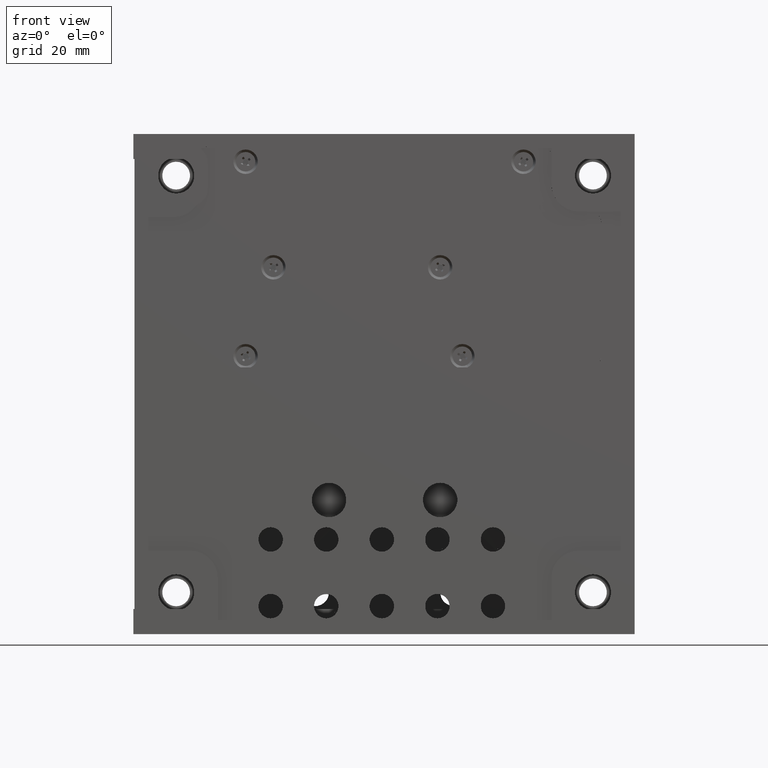
[diagram: clean part render]
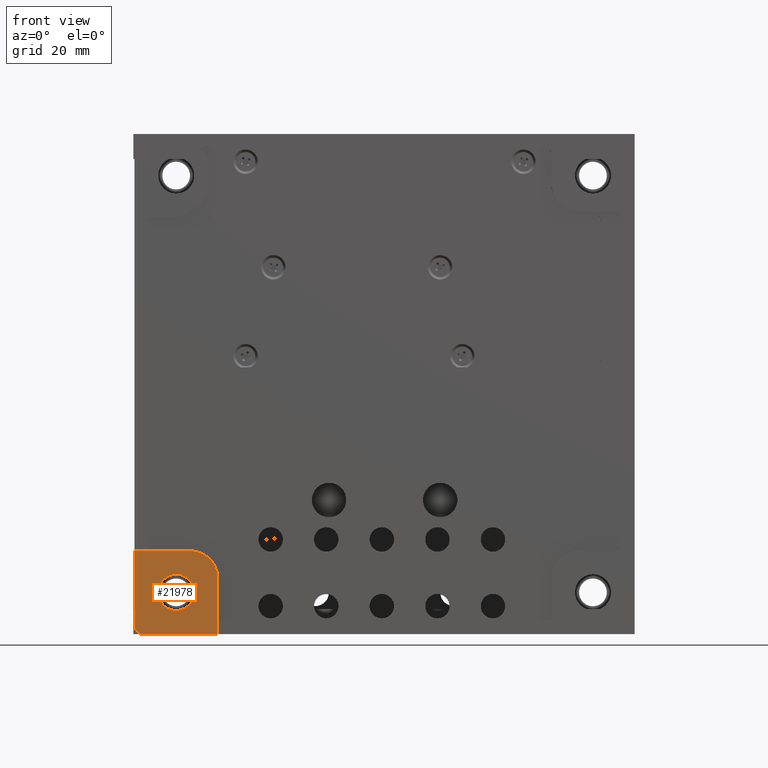
[diagram: same view with one face highlighted and labeled with its STEP entity id]
A machine part, front view. The second image highlights one B-rep face of the part: STEP entity #21978.
In plain terms, the highlighted planar face has unit normal (0, 1, 0).
Its self-contained STEP definition (entity closure, byte-faithful):
#129 = PLANE ( 'NONE',  #13504 ) ;
#1180 = ORIENTED_EDGE ( 'NONE', *, *, #8480, .F. ) ;
#1457 = CARTESIAN_POINT ( 'NONE',  ( 90.00000000000002842, -0.5000000000000073275, -6.994405055138486205E-15 ) ) ;
#1795 = VERTEX_POINT ( 'NONE', #17910 ) ;
#2111 = VERTEX_POINT ( 'NONE', #4225 ) ;
#2131 = VECTOR ( 'NONE', #8488, 1000.000000000000000 ) ;
#2985 = DIRECTION ( 'NONE',  ( 0.000000000000000000, -1.000802005370540067E-16, 1.000000000000000000 ) ) ;
#3209 = EDGE_CURVE ( 'NONE', #24401, #10849, #4364, .T. ) ;
#4166 = ORIENTED_EDGE ( 'NONE', *, *, #14072, .F. ) ;
#4210 = CARTESIAN_POINT ( 'NONE',  ( 14.99999999999998579, -0.5000000000000073275, 2.064565918769187469E-14 ) ) ;
#4225 = CARTESIAN_POINT ( 'NONE',  ( 1.823894905352556578E-14, -0.5000000000000083267, 1.000000000000085709 ) ) ;
#4364 = LINE ( 'NONE', #22100, #2131 ) ;
#4384 = FACE_OUTER_BOUND ( 'NONE', #18949, .T. ) ;
#4804 = ORIENTED_EDGE ( 'NONE', *, *, #7875, .T. ) ;
#5859 = DIRECTION ( 'NONE',  ( 0.000000000000000000, -1.084202172485504187E-16, 1.000000000000000000 ) ) ;
#6145 = ORIENTED_EDGE ( 'NONE', *, *, #3209, .T. ) ;
#6403 = CIRCLE ( 'NONE', #15300, 5.000000000000000888 ) ;
#6992 = VECTOR ( 'NONE', #28575, 1000.000000000000000 ) ;
#7636 = EDGE_CURVE ( 'NONE', #19590, #15466, #27829, .T. ) ;
#7746 = ORIENTED_EDGE ( 'NONE', *, *, #28897, .T. ) ;
#7875 = EDGE_CURVE ( 'NONE', #15466, #14852, #13762, .T. ) ;
#8480 = EDGE_CURVE ( 'NONE', #19590, #2111, #28428, .T. ) ;
#8488 = DIRECTION ( 'NONE',  ( -1.000000000000000000, -2.270333315661845941E-33, 2.044934454884303642E-17 ) ) ;
#9004 = LINE ( 'NONE', #19845, #18180 ) ;
#9058 = CARTESIAN_POINT ( 'NONE',  ( 14.99999999999998934, -0.5000000000000073275, 9.999999999999987566 ) ) ;
#9201 = CARTESIAN_POINT ( 'NONE',  ( 8.296048880491289539E-16, -0.5000000000000091038, 15.00000000000002487 ) ) ;
#9222 = FACE_BOUND ( 'NONE', #22117, .T. ) ;
#10849 = VERTEX_POINT ( 'NONE', #9201 ) ;
#11413 = ORIENTED_EDGE ( 'NONE', *, *, #7636, .T. ) ;
#12073 = ORIENTED_EDGE ( 'NONE', *, *, #19183, .F. ) ;
#13352 = DIRECTION ( 'NONE',  ( 0.000000000000000000, -1.110223024625155801E-16, 1.000000000000000000 ) ) ;
#13504 = AXIS2_PLACEMENT_3D ( 'NONE', #17879, #15973, #13352 ) ;
#13617 = CARTESIAN_POINT ( 'NONE',  ( 1.000000000000077272, -0.5000000000000067724, 2.081668171172168513E-14 ) ) ;
#13762 = LINE ( 'NONE', #9058, #17741 ) ;
#14072 = EDGE_CURVE ( 'NONE', #24401, #14852, #6403, .T. ) ;
#14852 = VERTEX_POINT ( 'NONE', #27418 ) ;
#15300 = AXIS2_PLACEMENT_3D ( 'NONE', #19629, #28555, #5859 ) ;
#15466 = VERTEX_POINT ( 'NONE', #4210 ) ;
#15973 = DIRECTION ( 'NONE',  ( 5.034521060366351927E-17, 1.000000000000000000, 1.110223024625155801E-16 ) ) ;
#17049 = DIRECTION ( 'NONE',  ( -5.034521060366352543E-17, -1.000000000000000000, -1.110223024625155924E-16 ) ) ;
#17741 = VECTOR ( 'NONE', #22391, 1000.000000000000000 ) ;
#17879 = CARTESIAN_POINT ( 'NONE',  ( 9.999999999999987566, -0.5000000000000082157, 10.00000000000002309 ) ) ;
#17910 = CARTESIAN_POINT ( 'NONE',  ( 7.500000000002067679, -0.5000000000000085487, 10.75000000000224887 ) ) ;
#18180 = VECTOR ( 'NONE', #22183, 1000.000000000000000 ) ;
#18949 = EDGE_LOOP ( 'NONE', ( #11413, #4804, #4166, #6145, #7746, #1180 ) ) ;
#19183 = EDGE_CURVE ( 'NONE', #1795, #1795, #27292, .T. ) ;
#19590 = VERTEX_POINT ( 'NONE', #21461 ) ;
#19629 = CARTESIAN_POINT ( 'NONE',  ( 9.999999999999987566, -0.5000000000000085487, 10.00000000000002309 ) ) ;
#19845 = CARTESIAN_POINT ( 'NONE',  ( 2.079150910641985285E-14, -0.5000000000000091038, 90.00000000000002842 ) ) ;
#21461 = CARTESIAN_POINT ( 'NONE',  ( 1.000000000000059064, -0.5000000000000072164, 2.835861430565376171E-14 ) ) ;
#21676 = AXIS2_PLACEMENT_3D ( 'NONE', #28172, #17049, #2985 ) ;
#21978 = ADVANCED_FACE ( 'NONE', ( #9222, #4384 ), #129, .F. ) ;
#22100 = CARTESIAN_POINT ( 'NONE',  ( -6.938893903907228378E-15, -0.5000000000000091038, 15.00000000000002309 ) ) ;
#22117 = EDGE_LOOP ( 'NONE', ( #12073 ) ) ;
#22183 = DIRECTION ( 'NONE',  ( -5.899875512610681084E-17, 0.000000000000000000, -1.000000000000000000 ) ) ;
#22391 = DIRECTION ( 'NONE',  ( 2.044934454884334149E-17, -1.029526558018396464E-33, 1.000000000000000000 ) ) ;
#23147 = DIRECTION ( 'NONE',  ( 1.000000000000000000, 0.000000000000000000, -3.673940397442058882E-16 ) ) ;
#24401 = VERTEX_POINT ( 'NONE', #27345 ) ;
#25180 = VECTOR ( 'NONE', #23147, 1000.000000000000000 ) ;
#27292 = CIRCLE ( 'NONE', #21676, 3.250000000002256417 ) ;
#27345 = CARTESIAN_POINT ( 'NONE',  ( 9.999999999999987566, -0.5000000000000091038, 15.00000000000002309 ) ) ;
#27418 = CARTESIAN_POINT ( 'NONE',  ( 14.99999999999998934, -0.5000000000000079936, 10.00000000000000533 ) ) ;
#27829 = LINE ( 'NONE', #1457, #25180 ) ;
#28172 = CARTESIAN_POINT ( 'NONE',  ( 7.500000000002067679, -0.5000000000000082157, 7.499999999999992895 ) ) ;
#28428 = LINE ( 'NONE', #13617, #6992 ) ;
#28555 = DIRECTION ( 'NONE',  ( 5.034521060366351927E-17, 1.000000000000000000, 1.110223024625155801E-16 ) ) ;
#28575 = DIRECTION ( 'NONE',  ( -0.7071067811865426878, 0.000000000000000000, 0.7071067811865524577 ) ) ;
#28897 = EDGE_CURVE ( 'NONE', #10849, #2111, #9004, .T. ) ;